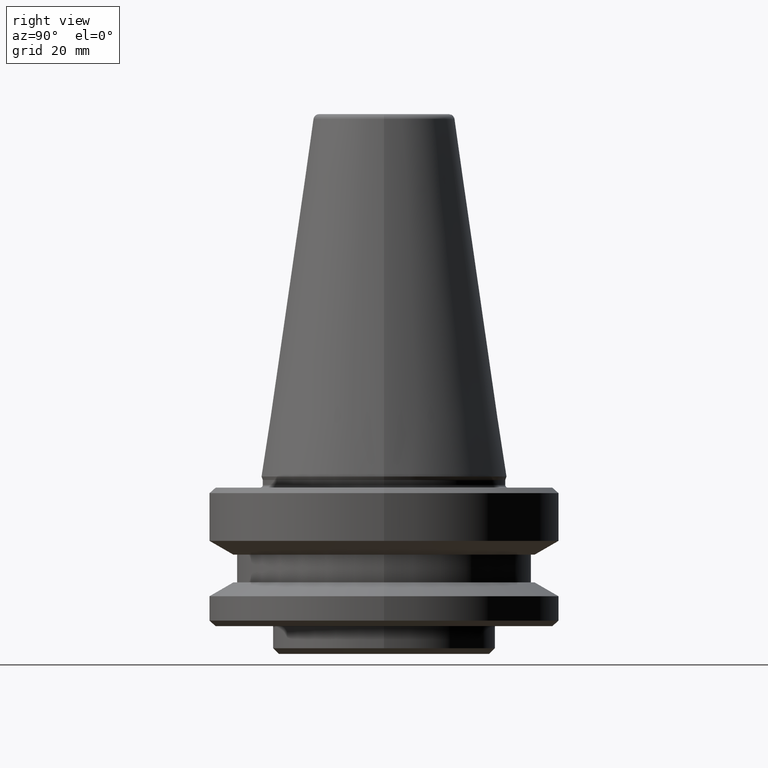
[diagram: clean part render]
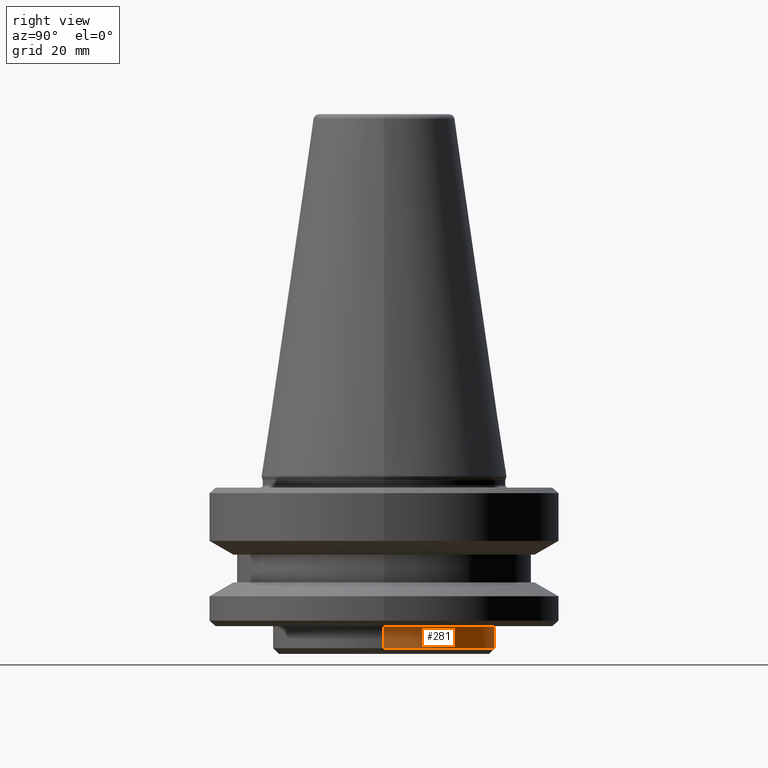
[diagram: same view with one face highlighted and labeled with its STEP entity id]
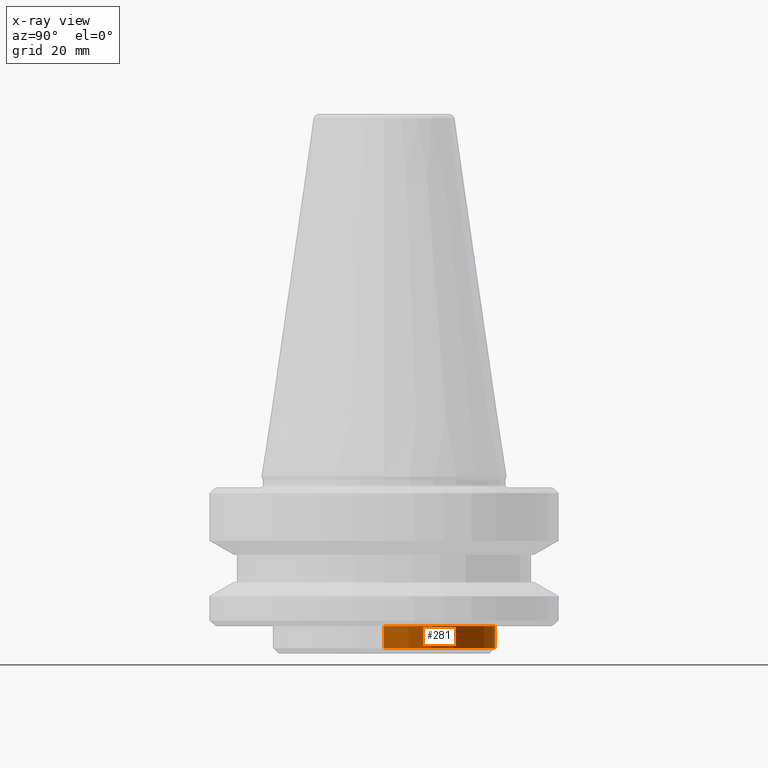
[diagram: x-ray of the same camera — body ghosted, the highlighted face saturated]
A machine part, right view. The second image highlights one B-rep face of the part: STEP entity #281.
The next image is the same camera in x-ray: the body ghosted, the highlighted face saturated — about 0% of this face is hidden behind the body in this view.
In plain terms, the highlighted cylindrical surface (partial cylindrical patch) has radius 20 mm, axis along (-0, -0, 1).
Its self-contained STEP definition (entity closure, byte-faithful):
#63 = VERTEX_POINT ( 'NONE', #593 ) ;
#85 = ORIENTED_EDGE ( 'NONE', *, *, #104, .T. ) ;
#103 = VECTOR ( 'NONE', #384, 1000.000000000000000 ) ;
#104 = EDGE_CURVE ( 'NONE', #63, #303, #128, .T. ) ;
#120 = DIRECTION ( 'NONE',  ( 1.000000000000000000, 0.0000000000000000000, 0.0000000000000000000 ) ) ;
#128 = CIRCLE ( 'NONE', #348, 19.99999999999998900 ) ;
#130 = EDGE_CURVE ( 'NONE', #303, #277, #304, .T. ) ;
#144 = DIRECTION ( 'NONE',  ( 1.000000000000000000, 0.0000000000000000000, 0.0000000000000000000 ) ) ;
#187 = FACE_OUTER_BOUND ( 'NONE', #970, .T. ) ;
#188 = EDGE_CURVE ( 'NONE', #277, #699, #640, .T. ) ;
#230 = CARTESIAN_POINT ( 'NONE',  ( 19.99999999999998900, 0.0000000000000000000, 83.99096479192306200 ) ) ;
#276 = ORIENTED_EDGE ( 'NONE', *, *, #849, .F. ) ;
#277 = VERTEX_POINT ( 'NONE', #547 ) ;
#278 = DIRECTION ( 'NONE',  ( -0.0000000000000000000, -0.0000000000000000000, 1.000000000000000000 ) ) ;
#281 = ADVANCED_FACE ( 'NONE', ( #187 ), #749, .T. ) ;
#303 = VERTEX_POINT ( 'NONE', #774 ) ;
#304 = LINE ( 'NONE', #997, #103 ) ;
#348 = AXIS2_PLACEMENT_3D ( 'NONE', #517, #906, #144 ) ;
#376 = ORIENTED_EDGE ( 'NONE', *, *, #130, .T. ) ;
#384 = DIRECTION ( 'NONE',  ( -0.0000000000000000000, -0.0000000000000000000, 1.000000000000000000 ) ) ;
#386 = DIRECTION ( 'NONE',  ( 0.0000000000000000000, 0.0000000000000000000, -1.000000000000000000 ) ) ;
#517 = CARTESIAN_POINT ( 'NONE',  ( 0.0000000000000000000, 0.0000000000000000000, -30.99311263393395100 ) ) ;
#537 = ORIENTED_EDGE ( 'NONE', *, *, #188, .T. ) ;
#547 = CARTESIAN_POINT ( 'NONE',  ( -19.99999999999998900, 2.449293598294705300E-015, -27.00000000000550700 ) ) ;
#593 = CARTESIAN_POINT ( 'NONE',  ( 19.99999999999998900, 0.0000000000000000000, -30.99311263393395100 ) ) ;
#640 = CIRCLE ( 'NONE', #869, 19.99999999999998900 ) ;
#699 = VERTEX_POINT ( 'NONE', #979 ) ;
#722 = LINE ( 'NONE', #230, #911 ) ;
#749 = CYLINDRICAL_SURFACE ( 'NONE', #876, 19.99999999999998900 ) ;
#774 = CARTESIAN_POINT ( 'NONE',  ( -19.99999999999998900, 2.449293598294705300E-015, -30.99311263393395100 ) ) ;
#845 = DIRECTION ( 'NONE',  ( 1.000000000000000000, 0.0000000000000000000, 0.0000000000000000000 ) ) ;
#849 = EDGE_CURVE ( 'NONE', #63, #699, #722, .T. ) ;
#869 = AXIS2_PLACEMENT_3D ( 'NONE', #899, #386, #120 ) ;
#876 = AXIS2_PLACEMENT_3D ( 'NONE', #901, #278, #845 ) ;
#899 = CARTESIAN_POINT ( 'NONE',  ( 0.0000000000000000000, 0.0000000000000000000, -27.00000000000550700 ) ) ;
#901 = CARTESIAN_POINT ( 'NONE',  ( 0.0000000000000000000, 0.0000000000000000000, 83.99096479192306200 ) ) ;
#906 = DIRECTION ( 'NONE',  ( -0.0000000000000000000, -0.0000000000000000000, 1.000000000000000000 ) ) ;
#911 = VECTOR ( 'NONE', #956, 1000.000000000000000 ) ;
#956 = DIRECTION ( 'NONE',  ( -0.0000000000000000000, -0.0000000000000000000, 1.000000000000000000 ) ) ;
#970 = EDGE_LOOP ( 'NONE', ( #85, #376, #537, #276 ) ) ;
#979 = CARTESIAN_POINT ( 'NONE',  ( 19.99999999999998900, 0.0000000000000000000, -27.00000000000550700 ) ) ;
#997 = CARTESIAN_POINT ( 'NONE',  ( -19.99999999999998900, 2.449293598294705300E-015, 83.99096479192306200 ) ) ;